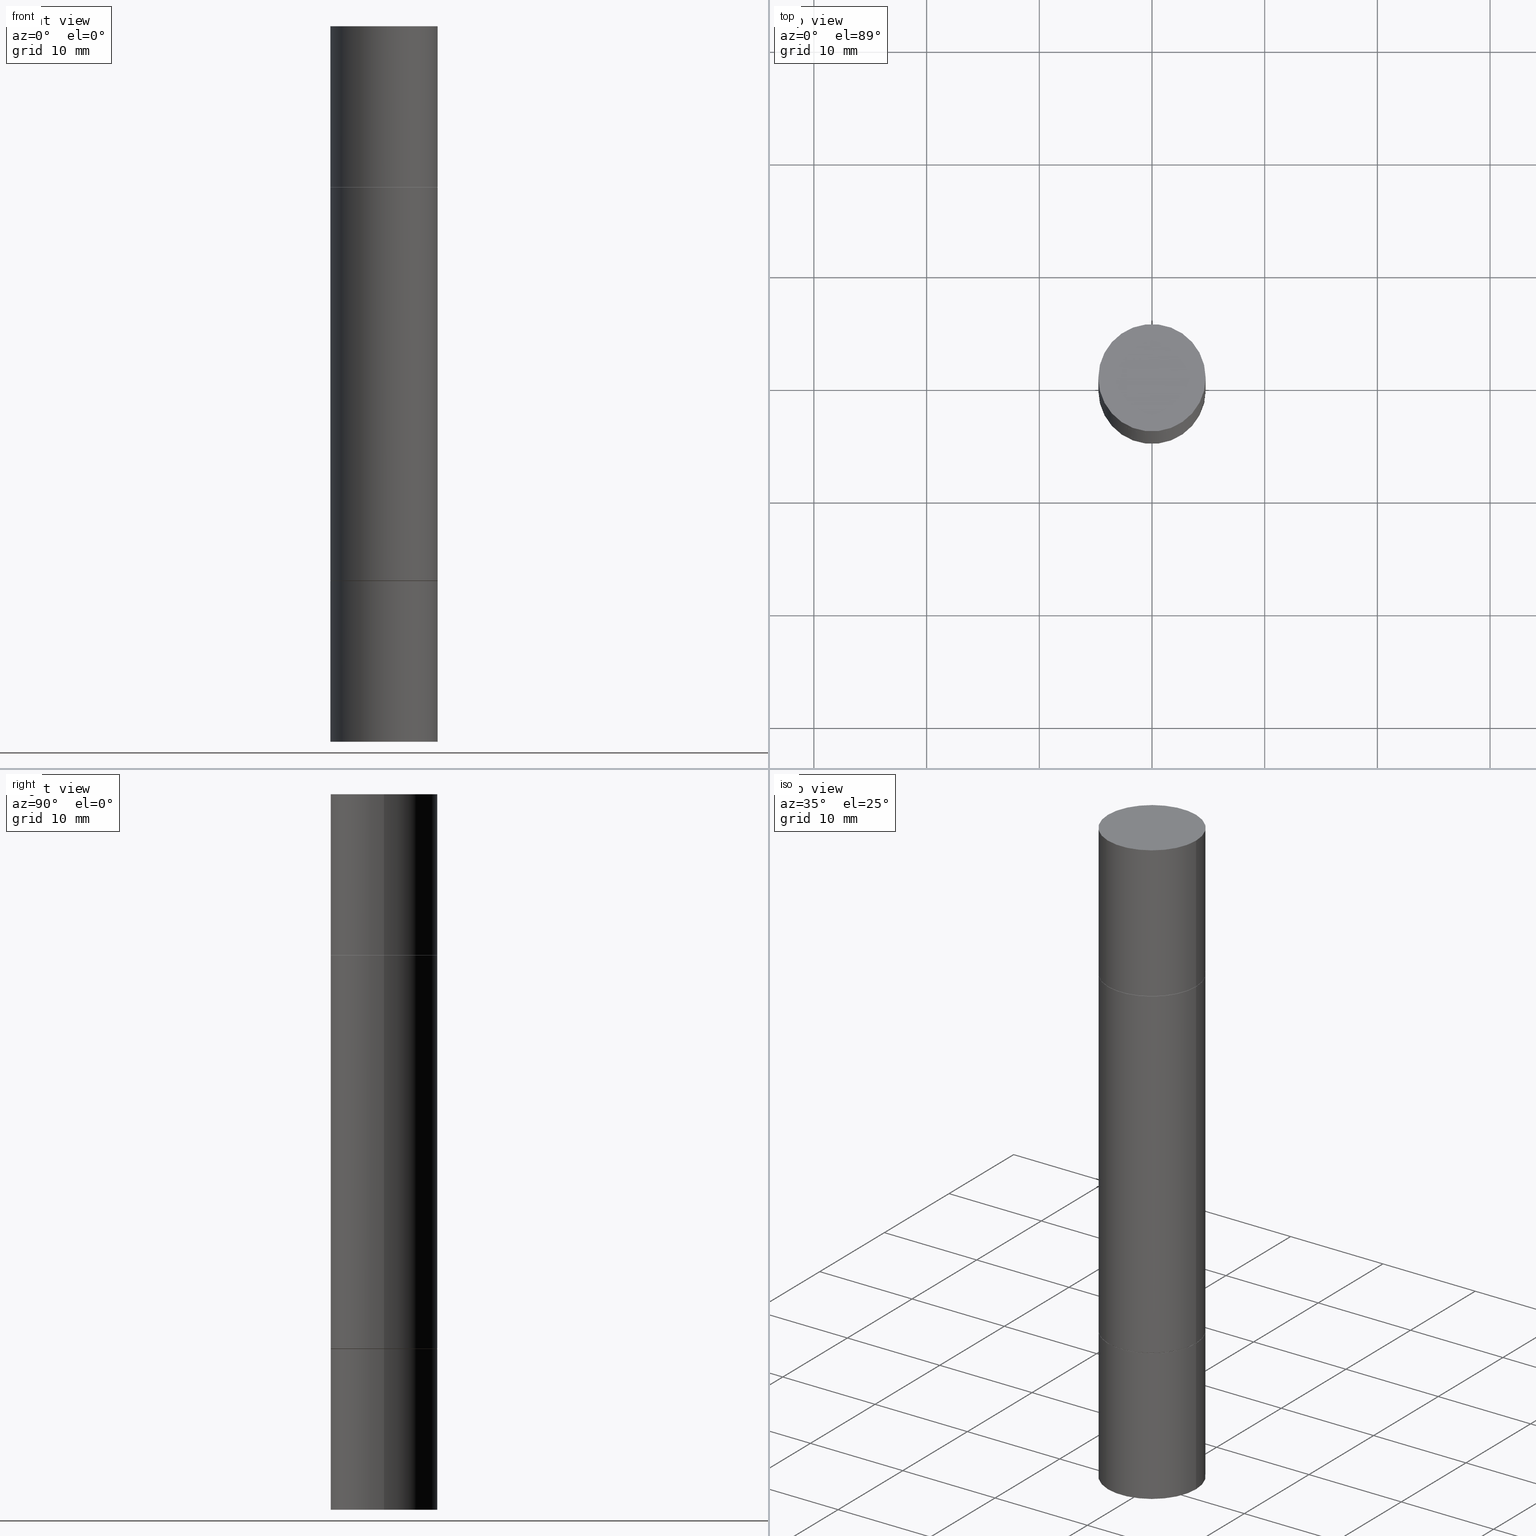
[diagram: canonical four-view strip — front | top / right | iso, engineering-drawing reading convention]
A machine part, canonical four-view strip (front | top / right | iso — engineering-drawing reading convention). The complete STEP part file that produces these views, byte-faithful:
ISO-10303-21;
HEADER;
FILE_DESCRIPTION (( 'STEP AP203' ),
    '1' );
FILE_NAME ('31435.STEP',
    '2024-03-04T15:41:54',
    ( '' ),
    ( '' ),
    'SwSTEP 2.0',
    'SolidWorks 2023',
    '' );
FILE_SCHEMA (( 'CONFIG_CONTROL_DESIGN' ));
ENDSEC;

DATA;
#1 = VECTOR ( 'NONE', #423, 39.37007874015748854 ) ;
#2 = PLANE ( 'NONE',  #73 ) ;
#3 = CARTESIAN_POINT ( 'NONE',  ( 0.000000000000000000, 0.000000000000000000, -1.249999999999999778 ) ) ;
#4 = EDGE_LOOP ( 'NONE', ( #437, #241, #175, #630 ) ) ;
#5 = EDGE_CURVE ( 'NONE', #176, #56, #166, .T. ) ;
#6 = VERTEX_POINT ( 'NONE', #224 ) ;
#7 = AXIS2_PLACEMENT_3D ( 'NONE', #132, #411, #672 ) ;
#8 = LOCAL_TIME ( 10, 41, 54.00000000000000000, #208 ) ;
#9 = CYLINDRICAL_SURFACE ( 'NONE', #276, 0.1875000000000000278 ) ;
#10 = ADVANCED_FACE ( 'NONE', ( #51 ), #268, .T. ) ;
#11 = ORIENTED_EDGE ( 'NONE', *, *, #548, .T. ) ;
#12 = CARTESIAN_POINT ( 'NONE',  ( 0.1864999999999999714, -3.263565609794813629E-15, -0.5619999999999996110 ) ) ;
#13 = DIRECTION ( 'NONE',  ( 1.000000000000000000, -6.982962677686266711E-15, 0.000000000000000000 ) ) ;
#14 = AXIS2_PLACEMENT_3D ( 'NONE', #129, #99, #81 ) ;
#15 = DIRECTION ( 'NONE',  ( -2.445468806185136597E-29, 3.491481338843145583E-15, 1.000000000000000000 ) ) ;
#16 = APPROVAL_PERSON_ORGANIZATION ( #576, #257, #54 ) ;
#17 = ORIENTED_EDGE ( 'NONE', *, *, #422, .T. ) ;
#18 = ORIENTED_EDGE ( 'NONE', *, *, #379, .T. ) ;
#19 = ORIENTED_EDGE ( 'NONE', *, *, #172, .F. ) ;
#20 = EDGE_CURVE ( 'NONE', #283, #179, #679, .T. ) ;
#21 = AXIS2_PLACEMENT_3D ( 'NONE', #363, #89, #145 ) ;
#22 = PLANE ( 'NONE',  #565 ) ;
#23 = VERTEX_POINT ( 'NONE', #632 ) ;
#24 = CARTESIAN_POINT ( 'NONE',  ( 0.1874999999999999167, -4.473849319252078646E-15, -1.249999999999999778 ) ) ;
#25 = DIRECTION ( 'NONE',  ( -2.445468806185136597E-29, -3.492890411551752677E-15, -1.000000000000000000 ) ) ;
#26 = DIRECTION ( 'NONE',  ( -0.000000000000000000, -3.492185875197449130E-15, -1.000000000000000000 ) ) ;
#27 = AXIS2_PLACEMENT_3D ( 'NONE', #397, #454, #173 ) ;
#28 = VERTEX_POINT ( 'NONE', #413 ) ;
#29 = FACE_OUTER_BOUND ( 'NONE', #553, .T. ) ;
#30 = PERSON_AND_ORGANIZATION ( #662, #326 ) ;
#31 = ADVANCED_FACE ( 'NONE', ( #622 ), #306, .F. ) ;
#32 = VECTOR ( 'NONE', #562, 39.37007874015748143 ) ;
#33 = CALENDAR_DATE ( 2024, 4, 3 ) ;
#34 = CARTESIAN_POINT ( 'NONE',  ( 4.739318546386794397E-29, -1.961243070406324635E-15, -0.5619999999999996110 ) ) ;
#35 = ADVANCED_BREP_SHAPE_REPRESENTATION ( '31435', ( #282, #255, #506, #280, #46, #639 ), #521 ) ;
#36 = COORDINATED_UNIVERSAL_TIME_OFFSET ( 5, 0, .BEHIND. ) ;
#37 = DIRECTION ( 'NONE',  ( -2.445468806185136597E-29, -3.492890411551752677E-15, -1.000000000000000000 ) ) ;
#38 = CARTESIAN_POINT ( 'NONE',  ( -0.1874999999999999167, -7.444121313411459473E-15, -2.499999999999999556 ) ) ;
#39 = AXIS2_PLACEMENT_3D ( 'NONE', #560, #284, #589 ) ;
#40 = CC_DESIGN_PERSON_AND_ORGANIZATION_ASSIGNMENT ( #271, #476, ( #532 ) ) ;
#41 = CONICAL_SURFACE ( 'NONE', #105, 0.1864999999999999714, 0.7853981633974311816 ) ;
#42 =( CONVERSION_BASED_UNIT ( 'INCH', #456 ) LENGTH_UNIT ( ) NAMED_UNIT ( #88 ) );
#43 = CARTESIAN_POINT ( 'NONE',  ( 4.739318546386794397E-29, -1.961243070406324635E-15, -0.5619999999999996110 ) ) ;
#44 = CARTESIAN_POINT ( 'NONE',  ( 0.000000000000000000, -8.730464687993621641E-15, -2.499999999999999556 ) ) ;
#45 = CYLINDRICAL_SURFACE ( 'NONE', #252, 0.1875000000000000278 ) ;
#46 = MANIFOLD_SOLID_BREP ( 'Combine1', #414 ) ;
#47 = CARTESIAN_POINT ( 'NONE',  ( 4.739318546386794397E-29, -6.766490834678016045E-15, -1.937999999999999945 ) ) ;
#48 = APPROVAL_STATUS ( 'not_yet_approved' ) ;
#49 = CYLINDRICAL_SURFACE ( 'NONE', #431, 0.1875000000000000278 ) ;
#50 = AXIS2_PLACEMENT_3D ( 'NONE', #213, #316, #101 ) ;
#51 = FACE_OUTER_BOUND ( 'NONE', #4, .T. ) ;
#52 = FACE_OUTER_BOUND ( 'NONE', #495, .T. ) ;
#53 = DIRECTION ( 'NONE',  ( 1.000000000000000000, -6.982962677686266711E-15, 0.000000000000000000 ) ) ;
#54 = APPROVAL_ROLE ( '' ) ;
#55 = ADVANCED_FACE ( 'NONE', ( #403 ), #49, .T. ) ;
#56 = VERTEX_POINT ( 'NONE', #366 ) ;
#57 = AXIS2_PLACEMENT_3D ( 'NONE', #631, #207, #93 ) ;
#58 = PERSON_AND_ORGANIZATION_ROLE ( 'classification_officer' ) ;
#59 = ORIENTED_EDGE ( 'NONE', *, *, #590, .F. ) ;
#60 = EDGE_CURVE ( 'NONE', #575, #544, #138, .T. ) ;
#61 = ADVANCED_FACE ( 'NONE', ( #360 ), #45, .T. ) ;
#62 = AXIS2_PLACEMENT_3D ( 'NONE', #285, #174, #493 ) ;
#63 = LOCAL_TIME ( 10, 41, 54.00000000000000000, #315 ) ;
#64 = CARTESIAN_POINT ( 'NONE',  ( -0.1864999999999999714, -5.436030178137207592E-15, -1.937999999999999945 ) ) ;
#65 = CARTESIAN_POINT ( 'NONE',  ( 0.000000000000000000, -8.730464687993621641E-15, -2.499999999999999556 ) ) ;
#66 = ORIENTED_EDGE ( 'NONE', *, *, #548, .F. ) ;
#67 = EDGE_LOOP ( 'NONE', ( #387, #157, #509, #409 ) ) ;
#68 = ORIENTED_EDGE ( 'NONE', *, *, #654, .T. ) ;
#69 = AXIS2_PLACEMENT_3D ( 'NONE', #189, #177, #598 ) ;
#70 = EDGE_CURVE ( 'NONE', #176, #77, #579, .T. ) ;
#71 = EDGE_LOOP ( 'NONE', ( #417, #649 ) ) ;
#72 = CARTESIAN_POINT ( 'NONE',  ( 0.1875000000000000278, -1.003977019005979665E-14, -2.499999999999999556 ) ) ;
#73 = AXIS2_PLACEMENT_3D ( 'NONE', #251, #245, #375 ) ;
#74 = DIRECTION ( 'NONE',  ( 2.438088387897959769E-29, 3.492890411551753071E-15, 1.000000000000000000 ) ) ;
#75 = APPROVAL_DATE_TIME ( #300, #143 ) ;
#76 = FACE_OUTER_BOUND ( 'NONE', #106, .T. ) ;
#77 = VERTEX_POINT ( 'NONE', #97 ) ;
#78 = CARTESIAN_POINT ( 'NONE',  ( 0.1864999999999999714, -8.068813374066505039E-15, -1.937999999999999945 ) ) ;
#79 = ADVANCED_FACE ( 'NONE', ( #671 ), #2, .T. ) ;
#80 = EDGE_CURVE ( 'NONE', #77, #523, #625, .T. ) ;
#81 = DIRECTION ( 'NONE',  ( 1.000000000000000000, -6.982962677686265922E-15, 4.876176775795935793E-29 ) ) ;
#82 = DIRECTION ( 'NONE',  ( 2.445468806185136597E-29, 3.492890411551752677E-15, 1.000000000000000000 ) ) ;
#83 = PERSON_AND_ORGANIZATION ( #662, #326 ) ;
#84 = LINE ( 'NONE', #676, #354 ) ;
#85 = FACE_OUTER_BOUND ( 'NONE', #540, .T. ) ;
#86 = DIRECTION ( 'NONE',  ( 2.445468806185136597E-29, 3.492890411551752677E-15, 1.000000000000000000 ) ) ;
#87 = DIRECTION ( 'NONE',  ( 0.7071067811865353603, -7.407546758114202791E-15, -0.7071067811865595631 ) ) ;
#88 = DIMENSIONAL_EXPONENTS ( 1.000000000000000000, 0.000000000000000000, 0.000000000000000000, 0.000000000000000000, 0.000000000000000000, 0.000000000000000000, 0.000000000000000000 ) ;
#89 = DIRECTION ( 'NONE',  ( -2.445468806185136597E-29, 3.491481338843145583E-15, 1.000000000000000000 ) ) ;
#90 =( NAMED_UNIT ( * ) SI_UNIT ( $, .STERADIAN. ) SOLID_ANGLE_UNIT ( ) );
#91 = CARTESIAN_POINT ( 'NONE',  ( 0.1874999999999999167, -1.003977019005979665E-14, -2.499999999999999556 ) ) ;
#92 = CC_DESIGN_PERSON_AND_ORGANIZATION_ASSIGNMENT ( #83, #675, ( #109 ) ) ;
#93 = DIRECTION ( 'NONE',  ( 1.000000000000000000, -6.982962677686266711E-15, 0.000000000000000000 ) ) ;
#94 = PERSON_AND_ORGANIZATION ( #662, #326 ) ;
#95 = CARTESIAN_POINT ( 'NONE',  ( 0.000000000000000000, -8.730464687993621641E-15, -2.499999999999999556 ) ) ;
#96 = FACE_OUTER_BOUND ( 'NONE', #289, .T. ) ;
#97 = CARTESIAN_POINT ( 'NONE',  ( -0.1875000000000000278, 3.066025098218802702E-16, 5.463695987328561936E-16 ) ) ;
#98 = ORIENTED_EDGE ( 'NONE', *, *, #328, .F. ) ;
#99 = DIRECTION ( 'NONE',  ( -2.445468806185136597E-29, 3.491481338843145583E-15, 1.000000000000000000 ) ) ;
#100 = EDGE_CURVE ( 'NONE', #483, #489, #564, .T. ) ;
#101 = DIRECTION ( 'NONE',  ( 1.000000000000000000, -6.982962677686269077E-15, 0.000000000000000000 ) ) ;
#102 = ORIENTED_EDGE ( 'NONE', *, *, #644, .T. ) ;
#103 = DIRECTION ( 'NONE',  ( 2.438088387897959769E-29, 3.492890411551753071E-15, 1.000000000000000000 ) ) ;
#104 = CONICAL_SURFACE ( 'NONE', #39, 0.1864999999999999714, 0.7853981633974311816 ) ;
#105 = AXIS2_PLACEMENT_3D ( 'NONE', #303, #25, #136 ) ;
#106 = EDGE_LOOP ( 'NONE', ( #558, #286, #190, #350 ) ) ;
#107 = CARTESIAN_POINT ( 'NONE',  ( 1.309305502066222340E-15, 0.1874999999999980294, -0.5620000000000004992 ) ) ;
#108 = ORIENTED_EDGE ( 'NONE', *, *, #153, .F. ) ;
#109 = PRODUCT_DEFINITION ( 'UNKNOWN', '', #532, #327 ) ;
#110 = ORIENTED_EDGE ( 'NONE', *, *, #128, .T. ) ;
#111 = VERTEX_POINT ( 'NONE', #199 ) ;
#112 = VECTOR ( 'NONE', #151, 39.37007874015748143 ) ;
#113 = CARTESIAN_POINT ( 'NONE',  ( -0.1874999999999999722, -3.078008298971767937E-15, -1.936999999999999833 ) ) ;
#114 = DIRECTION ( 'NONE',  ( 0.7071067811865353603, -2.468850131082130054E-15, 0.7071067811865595631 ) ) ;
#115 = ORIENTED_EDGE ( 'NONE', *, *, #537, .F. ) ;
#116 = LINE ( 'NONE', #168, #458 ) ;
#117 = ORIENTED_EDGE ( 'NONE', *, *, #281, .F. ) ;
#118 = VECTOR ( 'NONE', #114, 39.37007874015748854 ) ;
#119 = ADVANCED_FACE ( 'NONE', ( #309 ), #469, .T. ) ;
#120 = ORIENTED_EDGE ( 'NONE', *, *, #253, .F. ) ;
#121 = ORIENTED_EDGE ( 'NONE', *, *, #210, .T. ) ;
#122 = FACE_OUTER_BOUND ( 'NONE', #552, .T. ) ;
#123 = EDGE_CURVE ( 'NONE', #232, #373, #661, .T. ) ;
#124 = AXIS2_PLACEMENT_3D ( 'NONE', #507, #555, #615 ) ;
#125 = ORIENTED_EDGE ( 'NONE', *, *, #487, .T. ) ;
#126 = DIRECTION ( 'NONE',  ( 1.000000000000000000, -6.982962677686265922E-15, 0.000000000000000000 ) ) ;
#127 = APPROVAL_DATE_TIME ( #406, #500 ) ;
#128 = EDGE_CURVE ( 'NONE', #111, #377, #496, .T. ) ;
#129 = CARTESIAN_POINT ( 'NONE',  ( 0.000000000000000000, 0.000000000000000000, 0.000000000000000000 ) ) ;
#130 = APPROVAL_STATUS ( 'not_yet_approved' ) ;
#131 = DIRECTION ( 'NONE',  ( -2.445468806185136597E-29, -3.492890411551752677E-15, -1.000000000000000000 ) ) ;
#132 = CARTESIAN_POINT ( 'NONE',  ( 0.000000000000000000, -8.730464687993621641E-15, -2.499999999999999556 ) ) ;
#133 = APPLICATION_PROTOCOL_DEFINITION ( 'international standard', 'config_control_design', 1994, #573 ) ;
#134 = AXIS2_PLACEMENT_3D ( 'NONE', #301, #15, #596 ) ;
#135 = DIRECTION ( 'NONE',  ( -2.445468806185136877E-29, -3.492890411551753071E-15, -1.000000000000000000 ) ) ;
#136 = DIRECTION ( 'NONE',  ( 1.000000000000000000, -6.982962677686269077E-15, 0.000000000000000000 ) ) ;
#137 = DIRECTION ( 'NONE',  ( -1.000000000000000000, 6.982962677686265922E-15, -4.876176775795935793E-29 ) ) ;
#138 = CIRCLE ( 'NONE', #329, 0.1875000000000000278 ) ;
#139 = CIRCLE ( 'NONE', #607, 0.1874999999999999167 ) ;
#140 =( LENGTH_UNIT ( ) NAMED_UNIT ( * ) SI_UNIT ( $, .METRE. ) );
#141 = CARTESIAN_POINT ( 'NONE',  ( 4.739318546386794397E-29, -6.766490834678016045E-15, -1.937999999999999945 ) ) ;
#142 = DIRECTION ( 'NONE',  ( 1.000000000000000000, -6.982962677686265922E-15, 0.000000000000000000 ) ) ;
#143 = APPROVAL ( #664, 'UNSPECIFIED' ) ;
#144 = DIRECTION ( 'NONE',  ( 1.000000000000000000, -6.982962677686266711E-15, 0.000000000000000000 ) ) ;
#145 = DIRECTION ( 'NONE',  ( 1.000000000000000000, -6.982962677686269077E-15, 0.000000000000000000 ) ) ;
#146 = DIRECTION ( 'NONE',  ( 1.000000000000000000, -6.982962677686266711E-15, 0.000000000000000000 ) ) ;
#147 = ORIENTED_EDGE ( 'NONE', *, *, #80, .F. ) ;
#148 = AXIS2_PLACEMENT_3D ( 'NONE', #370, #390, #290 ) ;
#149 = VECTOR ( 'NONE', #551, 39.37007874015748143 ) ;
#150 = DIRECTION ( 'NONE',  ( 2.445468806185136597E-29, 3.492890411551752677E-15, 1.000000000000000000 ) ) ;
#151 = DIRECTION ( 'NONE',  ( -2.445468806185136877E-29, 3.491481338843145188E-15, 1.000000000000000000 ) ) ;
#152 = ORIENTED_EDGE ( 'NONE', *, *, #337, .T. ) ;
#153 = EDGE_CURVE ( 'NONE', #77, #176, #332, .T. ) ;
#154 = ADVANCED_FACE ( 'NONE', ( #473 ), #323, .T. ) ;
#155 = DATE_AND_TIME ( #634, #8 ) ;
#156 = DIRECTION ( 'NONE',  ( 1.000000000000000000, -6.982962677686265922E-15, 4.876176775795935793E-29 ) ) ;
#157 = ORIENTED_EDGE ( 'NONE', *, *, #475, .F. ) ;
#158 = UNCERTAINTY_MEASURE_WITH_UNIT (LENGTH_MEASURE( 1.000000000000000082E-05 ), #42, 'distance_accuracy_value', 'NONE');
#159 = DIRECTION ( 'NONE',  ( -2.445468806185136597E-29, 3.491481338843145583E-15, 1.000000000000000000 ) ) ;
#160 = ORIENTED_EDGE ( 'NONE', *, *, #70, .F. ) ;
#161 = EDGE_CURVE ( 'NONE', #283, #28, #165, .T. ) ;
#162 = DIRECTION ( 'NONE',  ( 1.000000000000000000, -6.982962677686265922E-15, 4.876176775795935793E-29 ) ) ;
#163 = CIRCLE ( 'NONE', #27, 0.1875000000000000278 ) ;
#164 = ORIENTED_EDGE ( 'NONE', *, *, #328, .T. ) ;
#165 = LINE ( 'NONE', #225, #118 ) ;
#166 = LINE ( 'NONE', #334, #433 ) ;
#167 = ADVANCED_FACE ( 'NONE', ( #514 ), #464, .T. ) ;
#168 = CARTESIAN_POINT ( 'NONE',  ( -0.1874999999999999167, -7.444121313411459473E-15, -2.499999999999999556 ) ) ;
#169 = VECTOR ( 'NONE', #369, 39.37007874015748854 ) ;
#170 = ORIENTED_EDGE ( 'NONE', *, *, #422, .F. ) ;
#171 = ORIENTED_EDGE ( 'NONE', *, *, #487, .F. ) ;
#172 = EDGE_CURVE ( 'NONE', #523, #56, #595, .T. ) ;
#173 = DIRECTION ( 'NONE',  ( 1.000000000000000000, -6.982962677686266711E-15, 0.000000000000000000 ) ) ;
#174 = DIRECTION ( 'NONE',  ( 2.438088387897959769E-29, 3.492890411551753071E-15, 1.000000000000000000 ) ) ;
#175 = ORIENTED_EDGE ( 'NONE', *, *, #666, .T. ) ;
#176 = VERTEX_POINT ( 'NONE', #270 ) ;
#177 = DIRECTION ( 'NONE',  ( -2.438088387897959769E-29, -3.492890411551753071E-15, -1.000000000000000000 ) ) ;
#178 = FACE_OUTER_BOUND ( 'NONE', #641, .T. ) ;
#179 = VERTEX_POINT ( 'NONE', #64 ) ;
#180 = ORIENTED_EDGE ( 'NONE', *, *, #304, .T. ) ;
#181 = CARTESIAN_POINT ( 'NONE',  ( 0.1875000000000000278, -1.003800884917403995E-14, -2.500000000000000000 ) ) ;
#182 = CIRCLE ( 'NONE', #481, 0.1875000000000000278 ) ;
#183 = CC_DESIGN_APPROVAL ( #257, ( #628 ) ) ;
#184 = ADVANCED_FACE ( 'NONE', ( #424 ), #677, .T. ) ;
#185 = PLANE ( 'NONE',  #62 ) ;
#186 = EDGE_LOOP ( 'NONE', ( #652, #609 ) ) ;
#187 = PRODUCT_DEFINITION_SHAPE ( 'NONE', 'NONE',  #109 ) ;
#188 = ORIENTED_EDGE ( 'NONE', *, *, #614, .F. ) ;
#189 = CARTESIAN_POINT ( 'NONE',  ( 4.739318546386794397E-29, -1.961243070406324635E-15, -0.5619999999999996110 ) ) ;
#190 = ORIENTED_EDGE ( 'NONE', *, *, #281, .T. ) ;
#191 =( NAMED_UNIT ( * ) PLANE_ANGLE_UNIT ( ) SI_UNIT ( $, .RADIAN. ) );
#192 = ORIENTED_EDGE ( 'NONE', *, *, #100, .T. ) ;
#193 = FACE_OUTER_BOUND ( 'NONE', #665, .T. ) ;
#194 = DATE_TIME_ROLE ( 'creation_date' ) ;
#195 = VECTOR ( 'NONE', #457, 39.37007874015748854 ) ;
#196 = EDGE_CURVE ( 'NONE', #339, #483, #525, .T. ) ;
#197 = CARTESIAN_POINT ( 'NONE',  ( 1.309305502066236145E-15, 0.1874999999999912847, -2.500000000000000444 ) ) ;
#198 = CALENDAR_DATE ( 2024, 4, 3 ) ;
#199 = CARTESIAN_POINT ( 'NONE',  ( -0.1864999999999999714, -6.800763900288241472E-16, -0.5619999999999996110 ) ) ;
#200 = EDGE_LOOP ( 'NONE', ( #485, #110 ) ) ;
#201 = FACE_OUTER_BOUND ( 'NONE', #278, .T. ) ;
#202 = DIRECTION ( 'NONE',  ( 1.000000000000000000, -6.982962677686266711E-15, 0.000000000000000000 ) ) ;
#203 = CARTESIAN_POINT ( 'NONE',  ( 4.739318546386794397E-29, -6.766490834678016045E-15, -1.937999999999999945 ) ) ;
#204 = CARTESIAN_POINT ( 'NONE',  ( 4.739318546386794397E-29, -1.961243070406324635E-15, -0.5619999999999996110 ) ) ;
#205 = DIRECTION ( 'NONE',  ( -0.7071067811865353603, 2.381258160591140710E-15, -0.7071067811865595631 ) ) ;
#206 = CLOSED_SHELL ( 'NONE', ( #167, #516, #643, #600 ) ) ;
#207 = DIRECTION ( 'NONE',  ( 2.445468806185136597E-29, 3.492890411551752677E-15, 1.000000000000000000 ) ) ;
#208 = COORDINATED_UNIVERSAL_TIME_OFFSET ( 5, 0, .BEHIND. ) ;
#209 = CARTESIAN_POINT ( 'NONE',  ( -0.1875000000000000278, -7.444121313411457895E-15, -2.499999999999999556 ) ) ;
#210 = EDGE_CURVE ( 'NONE', #536, #489, #139, .T. ) ;
#211 = EDGE_LOOP ( 'NONE', ( #547, #324, #535, #170 ) ) ;
#212 = AXIS2_PLACEMENT_3D ( 'NONE', #141, #611, #365 ) ;
#213 = CARTESIAN_POINT ( 'NONE',  ( 4.739318546386794397E-29, -6.766490834678016045E-15, -1.937999999999999945 ) ) ;
#214 = CARTESIAN_POINT ( 'NONE',  ( -0.1875000000000000278, -6.415329461342752645E-15, -2.500000000000000000 ) ) ;
#215 = DATE_TIME_ROLE ( 'classification_date' ) ;
#216 = DIRECTION ( 'NONE',  ( 1.000000000000000000, -6.982962677686270655E-15, 0.000000000000000000 ) ) ;
#217 = CARTESIAN_POINT ( 'NONE',  ( 0.1864999999999999714, -3.263565609794813629E-15, -0.5619999999999996110 ) ) ;
#218 = CARTESIAN_POINT ( 'NONE',  ( 0.000000000000000000, 0.000000000000000000, 0.000000000000000000 ) ) ;
#219 = AXIS2_PLACEMENT_3D ( 'NONE', #673, #405, #362 ) ;
#220 = CIRCLE ( 'NONE', #531, 0.1875000000000000278 ) ;
#221 = CC_DESIGN_PERSON_AND_ORGANIZATION_ASSIGNMENT ( #446, #567, ( #532 ) ) ;
#222 = CARTESIAN_POINT ( 'NONE',  ( -0.1875000000000000278, -6.783925862357143136E-16, -0.5629999999999997229 ) ) ;
#223 = EDGE_LOOP ( 'NONE', ( #482, #442, #235, #349 ) ) ;
#224 = CARTESIAN_POINT ( 'NONE',  ( 0.1875000000000000278, -1.307544161180414563E-15, 5.463695987328526437E-16 ) ) ;
#225 = CARTESIAN_POINT ( 'NONE',  ( 0.1864999999999999714, -8.068813374066505039E-15, -1.937999999999999945 ) ) ;
#226 = EDGE_CURVE ( 'NONE', #179, #283, #550, .T. ) ;
#227 = ORIENTED_EDGE ( 'NONE', *, *, #70, .T. ) ;
#228 = CIRCLE ( 'NONE', #490, 0.1875000000000000278 ) ;
#229 = VERTEX_POINT ( 'NONE', #308 ) ;
#230 = ORIENTED_EDGE ( 'NONE', *, *, #153, .T. ) ;
#231 = EDGE_LOOP ( 'NONE', ( #115, #98, #192, #396 ) ) ;
#232 = VERTEX_POINT ( 'NONE', #314 ) ;
#233 = DIRECTION ( 'NONE',  ( -1.000000000000000000, 6.982962677686265922E-15, -9.839502134516470631E-33 ) ) ;
#234 = EDGE_CURVE ( 'NONE', #232, #28, #543, .T. ) ;
#235 = ORIENTED_EDGE ( 'NONE', *, *, #383, .F. ) ;
#236 = ORIENTED_EDGE ( 'NONE', *, *, #448, .F. ) ;
#237 = CARTESIAN_POINT ( 'NONE',  ( 4.736873077580609355E-29, -1.964735960817877172E-15, -0.5629999999999997229 ) ) ;
#238 = PLANE ( 'NONE',  #69 ) ;
#239 = DIRECTION ( 'NONE',  ( -2.445468806185136877E-29, -3.492890411551753071E-15, -1.000000000000000000 ) ) ;
#240 = COORDINATED_UNIVERSAL_TIME_OFFSET ( 5, 0, .BEHIND. ) ;
#241 = ORIENTED_EDGE ( 'NONE', *, *, #526, .T. ) ;
#242 = ORIENTED_EDGE ( 'NONE', *, *, #379, .F. ) ;
#243 = PERSON_AND_ORGANIZATION_ROLE ( 'design_owner' ) ;
#244 = CARTESIAN_POINT ( 'NONE',  ( 4.739318546386794397E-29, -6.766490834678016045E-15, -1.937999999999999945 ) ) ;
#245 = DIRECTION ( 'NONE',  ( 2.438088387897959769E-29, 3.492890411551753071E-15, 1.000000000000000000 ) ) ;
#246 = EDGE_CURVE ( 'NONE', #377, #111, #642, .T. ) ;
#247 = LINE ( 'NONE', #556, #149 ) ;
#248 = DIRECTION ( 'NONE',  ( -2.445468806185136877E-29, -3.492890411551753071E-15, -1.000000000000000000 ) ) ;
#249 = AXIS2_PLACEMENT_3D ( 'NONE', #34, #355, #466 ) ;
#250 = CARTESIAN_POINT ( 'NONE',  ( 0.000000000000000000, 0.000000000000000000, 0.000000000000000000 ) ) ;
#251 = CARTESIAN_POINT ( 'NONE',  ( 1.309305502066236145E-15, 0.1874999999999999722, 0.000000000000000000 ) ) ;
#252 = AXIS2_PLACEMENT_3D ( 'NONE', #527, #520, #530 ) ;
#253 = EDGE_CURVE ( 'NONE', #6, #575, #302, .T. ) ;
#254 = VECTOR ( 'NONE', #293, 39.37007874015748143 ) ;
#255 = MANIFOLD_SOLID_BREP ( 'Mirror1[1]', #259 ) ;
#256 = AXIS2_PLACEMENT_3D ( 'NONE', #44, #462, #202 ) ;
#257 = APPROVAL ( #48, 'UNSPECIFIED' ) ;
#258 = DIRECTION ( 'NONE',  ( 2.438088387897960049E-29, -3.491481338843145188E-15, -1.000000000000000000 ) ) ;
#259 = CLOSED_SHELL ( 'NONE', ( #313, #563, #398, #501, #619, #296 ) ) ;
#260 = APPROVAL_DATE_TIME ( #155, #257 ) ;
#261 = AXIS2_PLACEMENT_3D ( 'NONE', #505, #499, #343 ) ;
#262 = DIRECTION ( 'NONE',  ( -2.438088387897960049E-29, 3.491481338843145188E-15, 1.000000000000000000 ) ) ;
#263 = DIRECTION ( 'NONE',  ( 1.000000000000000000, -6.982962677686265922E-15, 0.000000000000000000 ) ) ;
#264 = PRODUCT_RELATED_PRODUCT_CATEGORY ( 'detail', '', ( #447 ) ) ;
#265 = ORIENTED_EDGE ( 'NONE', *, *, #161, .T. ) ;
#266 = AXIS2_PLACEMENT_3D ( 'NONE', #3, #319, #378 ) ;
#267 = AXIS2_PLACEMENT_3D ( 'NONE', #244, #364, #561 ) ;
#268 = CYLINDRICAL_SURFACE ( 'NONE', #352, 0.1875000000000000278 ) ;
#269 = PLANE ( 'NONE',  #124 ) ;
#270 = CARTESIAN_POINT ( 'NONE',  ( 0.1875000000000000278, -1.307544161180414563E-15, 5.463695987328526437E-16 ) ) ;
#271 = PERSON_AND_ORGANIZATION ( #662, #326 ) ;
#272 = CARTESIAN_POINT ( 'NONE',  ( 4.739318546386794397E-29, -6.766490834678016045E-15, -1.937999999999999945 ) ) ;
#273 = ORIENTED_EDGE ( 'NONE', *, *, #100, .F. ) ;
#274 = CC_DESIGN_PERSON_AND_ORGANIZATION_ASSIGNMENT ( #30, #243, ( #447 ) ) ;
#275 = ORIENTED_EDGE ( 'NONE', *, *, #80, .T. ) ;
#276 = AXIS2_PLACEMENT_3D ( 'NONE', #65, #277, #512 ) ;
#277 = DIRECTION ( 'NONE',  ( -2.445468806185136597E-29, -3.492890411551752677E-15, -1.000000000000000000 ) ) ;
#278 = EDGE_LOOP ( 'NONE', ( #660, #18, #236, #331 ) ) ;
#279 = ORIENTED_EDGE ( 'NONE', *, *, #448, .T. ) ;
#280 = MANIFOLD_SOLID_BREP ( 'Mirror1[4]', #206 ) ;
#281 = EDGE_CURVE ( 'NONE', #592, #28, #163, .T. ) ;
#282 = MANIFOLD_SOLID_BREP ( 'Body-Move/Copy2[1]', #645 ) ;
#283 = VERTEX_POINT ( 'NONE', #78 ) ;
#284 = DIRECTION ( 'NONE',  ( -2.445468806185136597E-29, -3.492890411551752677E-15, -1.000000000000000000 ) ) ;
#285 = CARTESIAN_POINT ( 'NONE',  ( 1.309305502066236145E-15, 0.1874999999999999722, 0.000000000000000000 ) ) ;
#286 = ORIENTED_EDGE ( 'NONE', *, *, #570, .T. ) ;
#287 = VECTOR ( 'NONE', #135, 39.37007874015748143 ) ;
#288 = CIRCLE ( 'NONE', #267, 0.1875000000000000278 ) ;
#289 = EDGE_LOOP ( 'NONE', ( #242, #502, #265, #117 ) ) ;
#290 = DIRECTION ( 'NONE',  ( 1.000000000000000000, -6.982962677686266711E-15, 0.000000000000000000 ) ) ;
#291 = AXIS2_PLACEMENT_3D ( 'NONE', #471, #617, #142 ) ;
#292 = DIRECTION ( 'NONE',  ( 1.000000000000000000, -6.982962677686269077E-15, 0.000000000000000000 ) ) ;
#293 = DIRECTION ( 'NONE',  ( -2.445468806185136877E-29, -3.492890411551753071E-15, -1.000000000000000000 ) ) ;
#294 = AXIS2_PLACEMENT_3D ( 'NONE', #534, #382, #216 ) ;
#295 = CARTESIAN_POINT ( 'NONE',  ( 3.056836007731420185E-29, -4.364351673553931682E-15, -1.249999999999999778 ) ) ;
#296 = ADVANCED_FACE ( 'NONE', ( #298 ), #594, .T. ) ;
#297 = ORIENTED_EDGE ( 'NONE', *, *, #5, .T. ) ;
#298 = FACE_OUTER_BOUND ( 'NONE', #231, .T. ) ;
#299 = AXIS2_PLACEMENT_3D ( 'NONE', #461, #624, #144 ) ;
#300 = DATE_AND_TIME ( #347, #491 ) ;
#301 = CARTESIAN_POINT ( 'NONE',  ( 6.113672015462842613E-29, -8.728703347107864943E-15, -2.500000000000000000 ) ) ;
#302 = LINE ( 'NONE', #72, #545 ) ;
#303 = CARTESIAN_POINT ( 'NONE',  ( 4.739318546386794397E-29, -1.961243070406324635E-15, -0.5619999999999996110 ) ) ;
#304 = EDGE_CURVE ( 'NONE', #373, #232, #220, .T. ) ;
#305 = APPLICATION_PROTOCOL_DEFINITION ( 'international standard', 'config_control_design', 1994, #584 ) ;
#306 = PLANE ( 'NONE',  #529 ) ;
#307 = FACE_OUTER_BOUND ( 'NONE', #376, .T. ) ;
#308 = CARTESIAN_POINT ( 'NONE',  ( 0.1875000000000000278, -8.075796336744191053E-15, -1.937999999999999945 ) ) ;
#309 = FACE_OUTER_BOUND ( 'NONE', #330, .T. ) ;
#310 = CONICAL_SURFACE ( 'NONE', #392, 0.1864999999999999714, 0.7853981633974311816 ) ;
#311 = CC_DESIGN_APPROVAL ( #500, ( #532 ) ) ;
#312 = CC_DESIGN_APPROVAL ( #143, ( #109 ) ) ;
#313 = ADVANCED_FACE ( 'NONE', ( #29 ), #610, .T. ) ;
#314 = CARTESIAN_POINT ( 'NONE',  ( 0.1875000000000000278, -3.274041462884052574E-15, -0.5629999999999997229 ) ) ;
#315 = COORDINATED_UNIVERSAL_TIME_OFFSET ( 5, 0, .BEHIND. ) ;
#316 = DIRECTION ( 'NONE',  ( -2.445468806185136597E-29, 3.491481338843145583E-15, 1.000000000000000000 ) ) ;
#317 = EDGE_LOOP ( 'NONE', ( #657, #121 ) ) ;
#318 = DIRECTION ( 'NONE',  ( -1.000000000000000000, 6.982962677686265922E-15, -9.839502134516470631E-33 ) ) ;
#319 = DIRECTION ( 'NONE',  ( 0.000000000000000000, 3.492185875197449524E-15, 1.000000000000000000 ) ) ;
#320 = DIRECTION ( 'NONE',  ( 2.438088387897960049E-29, -3.491481338843145188E-15, -1.000000000000000000 ) ) ;
#321 = DATE_AND_TIME ( #637, #63 ) ;
#322 = DIRECTION ( 'NONE',  ( 2.445468806185136597E-29, 3.492890411551752677E-15, 1.000000000000000000 ) ) ;
#323 = CYLINDRICAL_SURFACE ( 'NONE', #294, 0.1874999999999999167 ) ;
#324 = ORIENTED_EDGE ( 'NONE', *, *, #636, .T. ) ;
#325 = AXIS2_PLACEMENT_3D ( 'NONE', #640, #580, #480 ) ;
#326 = ORGANIZATION ( 'UNSPECIFIED', 'UNSPECIFIED', '' ) ;
#327 = DESIGN_CONTEXT ( 'detailed design', #584, 'design' ) ;
#328 = EDGE_CURVE ( 'NONE', #483, #339, #587, .T. ) ;
#329 = AXIS2_PLACEMENT_3D ( 'NONE', #522, #515, #460 ) ;
#330 = EDGE_LOOP ( 'NONE', ( #486, #11, #180, #188 ) ) ;
#331 = ORIENTED_EDGE ( 'NONE', *, *, #161, .F. ) ;
#332 = CIRCLE ( 'NONE', #524, 0.1875000000000000278 ) ;
#333 = EDGE_LOOP ( 'NONE', ( #108, #275, #488, #441 ) ) ;
#334 = CARTESIAN_POINT ( 'NONE',  ( 0.1875000000000000278, -1.003977019005979665E-14, -2.499999999999999556 ) ) ;
#335 = AXIS2_PLACEMENT_3D ( 'NONE', #568, #408, #623 ) ;
#336 = ADVANCED_FACE ( 'NONE', ( #201 ), #577, .T. ) ;
#337 = EDGE_CURVE ( 'NONE', #23, #578, #416, .T. ) ;
#338 = DIRECTION ( 'NONE',  ( -2.445468806185136877E-29, -3.492890411551753071E-15, -1.000000000000000000 ) ) ;
#339 = VERTEX_POINT ( 'NONE', #374 ) ;
#340 = ORIENTED_EDGE ( 'NONE', *, *, #353, .F. ) ;
#341 = VERTEX_POINT ( 'NONE', #181 ) ;
#342 = ORIENTED_EDGE ( 'NONE', *, *, #636, .F. ) ;
#343 = DIRECTION ( 'NONE',  ( 1.000000000000000000, -6.982962677686269077E-15, 0.000000000000000000 ) ) ;
#344 = VECTOR ( 'NONE', #248, 39.37007874015748143 ) ;
#345 = CIRCLE ( 'NONE', #428, 0.1864999999999999714 ) ;
#346 = ADVANCED_FACE ( 'NONE', ( #178 ), #646, .F. ) ;
#347 = CALENDAR_DATE ( 2024, 4, 3 ) ;
#348 = AXIS2_PLACEMENT_3D ( 'NONE', #43, #467, #678 ) ;
#349 = ORIENTED_EDGE ( 'NONE', *, *, #666, .F. ) ;
#350 = ORIENTED_EDGE ( 'NONE', *, *, #234, .F. ) ;
#351 = LINE ( 'NONE', #510, #1 ) ;
#352 = AXIS2_PLACEMENT_3D ( 'NONE', #218, #425, #162 ) ;
#353 = EDGE_CURVE ( 'NONE', #593, #6, #669, .T. ) ;
#354 = VECTOR ( 'NONE', #205, 39.37007874015748854 ) ;
#355 = DIRECTION ( 'NONE',  ( 2.445468806185136597E-29, 3.492890411551752677E-15, 1.000000000000000000 ) ) ;
#356 = LOCAL_TIME ( 10, 41, 54.00000000000000000, #395 ) ;
#357 = LINE ( 'NONE', #38, #344 ) ;
#358 = CARTESIAN_POINT ( 'NONE',  ( -0.1864999999999999714, -6.817601938219341781E-16, -0.5619999999999996110 ) ) ;
#359 = PERSON_AND_ORGANIZATION ( #662, #326 ) ;
#360 = FACE_OUTER_BOUND ( 'NONE', #67, .T. ) ;
#361 = CARTESIAN_POINT ( 'NONE',  ( 0.1864999999999999714, -3.263565609794813629E-15, -0.5619999999999996110 ) ) ;
#362 = DIRECTION ( 'NONE',  ( 1.000000000000000000, -6.982962677686270655E-15, 0.000000000000000000 ) ) ;
#363 = CARTESIAN_POINT ( 'NONE',  ( 4.739318546386794397E-29, -6.766490834678016045E-15, -1.937999999999999945 ) ) ;
#364 = DIRECTION ( 'NONE',  ( -2.445468806185136597E-29, 3.491481338843145583E-15, 1.000000000000000000 ) ) ;
#365 = DIRECTION ( 'NONE',  ( 1.000000000000000000, -6.982962677686269077E-15, 0.000000000000000000 ) ) ;
#366 = CARTESIAN_POINT ( 'NONE',  ( 0.1875000000000000278, -3.270548572472500038E-15, -0.5619999999999996110 ) ) ;
#367 = CC_DESIGN_PERSON_AND_ORGANIZATION_ASSIGNMENT ( #94, #58, ( #628 ) ) ;
#368 = CIRCLE ( 'NONE', #335, 0.1875000000000000278 ) ;
#369 = DIRECTION ( 'NONE',  ( -0.7071067811865353603, 7.493145998870309984E-15, 0.7071067811865595631 ) ) ;
#370 = CARTESIAN_POINT ( 'NONE',  ( 4.736873077580609355E-29, -6.762999353339172249E-15, -1.936999999999999833 ) ) ;
#371 = SHAPE_DEFINITION_REPRESENTATION ( #187, #35 ) ;
#372 = DIRECTION ( 'NONE',  ( 1.000000000000000000, -6.982962677686269077E-15, 0.000000000000000000 ) ) ;
#373 = VERTEX_POINT ( 'NONE', #222 ) ;
#374 = CARTESIAN_POINT ( 'NONE',  ( -0.1875000000000000278, -6.783925862357143136E-16, -0.5629999999999997229 ) ) ;
#375 = DIRECTION ( 'NONE',  ( -1.000000000000000000, 6.982962677686265922E-15, -9.839502134516470631E-33 ) ) ;
#376 = EDGE_LOOP ( 'NONE', ( #342, #650, #17, #164 ) ) ;
#377 = VERTEX_POINT ( 'NONE', #217 ) ;
#378 = DIRECTION ( 'NONE',  ( 0.000000000000000000, 1.000000000000000000, -3.492185875197449524E-15 ) ) ;
#379 = EDGE_CURVE ( 'NONE', #179, #592, #420, .T. ) ;
#380 = SECURITY_CLASSIFICATION_LEVEL ( 'unclassified' ) ;
#381 = CIRCLE ( 'NONE', #427, 0.1875000000000000278 ) ;
#382 = DIRECTION ( 'NONE',  ( -2.445468806185136597E-29, -3.492890411551752677E-15, -1.000000000000000000 ) ) ;
#383 = EDGE_CURVE ( 'NONE', #229, #435, #381, .T. ) ;
#384 = ORIENTED_EDGE ( 'NONE', *, *, #60, .F. ) ;
#385 = CC_DESIGN_DATE_AND_TIME_ASSIGNMENT ( #321, #215, ( #628 ) ) ;
#386 = CIRCLE ( 'NONE', #134, 0.1875000000000000278 ) ;
#387 = ORIENTED_EDGE ( 'NONE', *, *, #439, .F. ) ;
#388 = VERTEX_POINT ( 'NONE', #214 ) ;
#389 = ORIENTED_EDGE ( 'NONE', *, *, #196, .F. ) ;
#390 = DIRECTION ( 'NONE',  ( -2.445468806185136597E-29, 3.491481338843145583E-15, 1.000000000000000000 ) ) ;
#391 = ADVANCED_FACE ( 'NONE', ( #96 ), #310, .T. ) ;
#392 = AXIS2_PLACEMENT_3D ( 'NONE', #47, #472, #633 ) ;
#393 = CARTESIAN_POINT ( 'NONE',  ( 6.113672015462842613E-29, 1.761340885760521790E-18, 5.463695987328526437E-16 ) ) ;
#394 = EDGE_CURVE ( 'NONE', #388, #435, #680, .T. ) ;
#395 = COORDINATED_UNIVERSAL_TIME_OFFSET ( 5, 0, .BEHIND. ) ;
#396 = ORIENTED_EDGE ( 'NONE', *, *, #210, .F. ) ;
#397 = CARTESIAN_POINT ( 'NONE',  ( 4.736873077580609355E-29, -6.762999353339172249E-15, -1.936999999999999833 ) ) ;
#398 = ADVANCED_FACE ( 'NONE', ( #477 ), #418, .F. ) ;
#399 = DIRECTION ( 'NONE',  ( 1.000000000000000000, 0.000000000000000000, 0.000000000000000000 ) ) ;
#400 = CARTESIAN_POINT ( 'NONE',  ( -0.1875000000000000278, -6.415329461342752645E-15, -1.937999999999999945 ) ) ;
#401 = AXIS2_PLACEMENT_3D ( 'NONE', #295, #26, #586 ) ;
#402 = PERSON_AND_ORGANIZATION ( #662, #326 ) ;
#403 = FACE_OUTER_BOUND ( 'NONE', #533, .T. ) ;
#404 = CC_DESIGN_SECURITY_CLASSIFICATION ( #628, ( #532 ) ) ;
#405 = DIRECTION ( 'NONE',  ( -2.445468806185136597E-29, -3.492890411551752677E-15, -1.000000000000000000 ) ) ;
#406 = DATE_AND_TIME ( #198, #356 ) ;
#407 = DIRECTION ( 'NONE',  ( 1.000000000000000000, -6.982962677686266711E-15, 0.000000000000000000 ) ) ;
#408 = DIRECTION ( 'NONE',  ( -2.445468806185136597E-29, 3.491481338843145583E-15, 1.000000000000000000 ) ) ;
#409 = ORIENTED_EDGE ( 'NONE', *, *, #60, .T. ) ;
#410 = CARTESIAN_POINT ( 'NONE',  ( 4.739318546386794397E-29, -1.961243070406324635E-15, -0.5619999999999996110 ) ) ;
#411 = DIRECTION ( 'NONE',  ( -2.445468806185136597E-29, -3.492890411551752677E-15, -1.000000000000000000 ) ) ;
#412 = DIRECTION ( 'NONE',  ( 2.445468806185136597E-29, 3.492890411551752677E-15, 1.000000000000000000 ) ) ;
#413 = CARTESIAN_POINT ( 'NONE',  ( 0.1875000000000000278, -8.072304855405348046E-15, -1.936999999999999833 ) ) ;
#414 = CLOSED_SHELL ( 'NONE', ( #336, #581, #119, #438, #674, #154, #391, #346 ) ) ;
#415 = CARTESIAN_POINT ( 'NONE',  ( 4.736873077580609355E-29, -1.964735960817877172E-15, -0.5629999999999997229 ) ) ;
#416 = CIRCLE ( 'NONE', #249, 0.1864999999999999714 ) ;
#417 = ORIENTED_EDGE ( 'NONE', *, *, #475, .T. ) ;
#418 = PLANE ( 'NONE',  #266 ) ;
#419 = CARTESIAN_POINT ( 'NONE',  ( 1.309305502066222340E-15, 0.1874999999999932554, -1.938000000000000389 ) ) ;
#420 = LINE ( 'NONE', #430, #169 ) ;
#421 = EDGE_LOOP ( 'NONE', ( #384, #171 ) ) ;
#422 = EDGE_CURVE ( 'NONE', #377, #483, #351, .T. ) ;
#423 = DIRECTION ( 'NONE',  ( 0.7071067811865353603, -7.407546758114202791E-15, -0.7071067811865595631 ) ) ;
#424 = FACE_OUTER_BOUND ( 'NONE', #186, .T. ) ;
#425 = DIRECTION ( 'NONE',  ( -2.445468806185136597E-29, 3.491481338843145583E-15, 1.000000000000000000 ) ) ;
#426 = PLANE ( 'NONE',  #648 ) ;
#427 = AXIS2_PLACEMENT_3D ( 'NONE', #272, #159, #569 ) ;
#428 = AXIS2_PLACEMENT_3D ( 'NONE', #559, #82, #519 ) ;
#429 = ADVANCED_FACE ( 'NONE', ( #608 ), #455, .T. ) ;
#430 = CARTESIAN_POINT ( 'NONE',  ( -0.1864999999999999714, -5.441328632485429205E-15, -1.937999999999999945 ) ) ;
#431 = AXIS2_PLACEMENT_3D ( 'NONE', #95, #37, #407 ) ;
#432 = AXIS2_PLACEMENT_3D ( 'NONE', #197, #320, #566 ) ;
#433 = VECTOR ( 'NONE', #478, 39.37007874015748143 ) ;
#434 = EDGE_LOOP ( 'NONE', ( #597, #102 ) ) ;
#435 = VERTEX_POINT ( 'NONE', #400 ) ;
#436 = ORIENTED_EDGE ( 'NONE', *, *, #654, .F. ) ;
#437 = ORIENTED_EDGE ( 'NONE', *, *, #394, .F. ) ;
#438 = ADVANCED_FACE ( 'NONE', ( #52 ), #269, .F. ) ;
#439 = EDGE_CURVE ( 'NONE', #593, #544, #451, .T. ) ;
#440 = DIRECTION ( 'NONE',  ( 2.445468806185136597E-29, 3.492890411551752677E-15, 1.000000000000000000 ) ) ;
#441 = ORIENTED_EDGE ( 'NONE', *, *, #5, .F. ) ;
#442 = ORIENTED_EDGE ( 'NONE', *, *, #394, .T. ) ;
#443 = CIRCLE ( 'NONE', #148, 0.1875000000000000278 ) ;
#444 = CARTESIAN_POINT ( 'NONE',  ( 1.309305502066222340E-15, 0.1874999999999980294, -0.5620000000000004992 ) ) ;
#445 = DIRECTION ( 'NONE',  ( -2.445468806185136597E-29, -3.492890411551752677E-15, -1.000000000000000000 ) ) ;
#446 = PERSON_AND_ORGANIZATION ( #662, #326 ) ;
#447 = PRODUCT ( '31435', '31435', '', ( #452 ) ) ;
#448 = EDGE_CURVE ( 'NONE', #28, #592, #443, .T. ) ;
#449 = CYLINDRICAL_SURFACE ( 'NONE', #655, 0.1874999999999999167 ) ;
#450 = CARTESIAN_POINT ( 'NONE',  ( -0.1875000000000000278, 3.066025098218802702E-16, -0.5619999999999996110 ) ) ;
#451 = LINE ( 'NONE', #663, #287 ) ;
#452 = MECHANICAL_CONTEXT ( 'NONE', #573, 'mechanical' ) ;
#453 = EDGE_LOOP ( 'NONE', ( #147, #160, #297, #503 ) ) ;
#454 = DIRECTION ( 'NONE',  ( -2.445468806185136597E-29, 3.491481338843145583E-15, 1.000000000000000000 ) ) ;
#455 = CYLINDRICAL_SURFACE ( 'NONE', #14, 0.1875000000000000278 ) ;
#456 = LENGTH_MEASURE_WITH_UNIT ( LENGTH_MEASURE( 0.02539999999999999897 ), #140 );
#457 = DIRECTION ( 'NONE',  ( -0.7071067811865353603, 2.381258160591140710E-15, -0.7071067811865595631 ) ) ;
#458 = VECTOR ( 'NONE', #338, 39.37007874015748143 ) ;
#459 = CARTESIAN_POINT ( 'NONE',  ( 3.056836007731420185E-29, -4.364351673553931682E-15, -1.249999999999999778 ) ) ;
#460 = DIRECTION ( 'NONE',  ( 1.000000000000000000, -6.982962677686266711E-15, 0.000000000000000000 ) ) ;
#461 = CARTESIAN_POINT ( 'NONE',  ( 4.736873077580609355E-29, -1.964735960817877172E-15, -0.5629999999999997229 ) ) ;
#462 = DIRECTION ( 'NONE',  ( -2.445468806185136597E-29, -3.492890411551752677E-15, -1.000000000000000000 ) ) ;
#463 = CC_DESIGN_DATE_AND_TIME_ASSIGNMENT ( #667, #194, ( #109 ) ) ;
#464 = CYLINDRICAL_SURFACE ( 'NONE', #256, 0.1875000000000000278 ) ;
#465 = APPROVAL_ROLE ( '' ) ;
#466 = DIRECTION ( 'NONE',  ( 1.000000000000000000, -6.982962677686269077E-15, 0.000000000000000000 ) ) ;
#467 = DIRECTION ( 'NONE',  ( -2.445468806185136597E-29, -3.492890411551752677E-15, -1.000000000000000000 ) ) ;
#468 = CARTESIAN_POINT ( 'NONE',  ( -0.1875000000000000278, 3.066025098218802702E-16, -0.5619999999999996110 ) ) ;
#469 = CONICAL_SURFACE ( 'NONE', #348, 0.1864999999999999714, 0.7853981633974311816 ) ;
#470 = AXIS2_PLACEMENT_3D ( 'NONE', #571, #412, #53 ) ;
#471 = CARTESIAN_POINT ( 'NONE',  ( 6.113672015462842613E-29, 1.761340885760521790E-18, 5.463695987328526437E-16 ) ) ;
#472 = DIRECTION ( 'NONE',  ( -2.445468806185136597E-29, 3.491481338843145583E-15, 1.000000000000000000 ) ) ;
#473 = FACE_OUTER_BOUND ( 'NONE', #651, .T. ) ;
#474 = VECTOR ( 'NONE', #87, 39.37007874015748854 ) ;
#475 = EDGE_CURVE ( 'NONE', #6, #593, #182, .T. ) ;
#476 = PERSON_AND_ORGANIZATION_ROLE ( 'design_supplier' ) ;
#477 = FACE_OUTER_BOUND ( 'NONE', #317, .T. ) ;
#478 = DIRECTION ( 'NONE',  ( -2.445468806185136877E-29, -3.492890411551753071E-15, -1.000000000000000000 ) ) ;
#479 = ADVANCED_FACE ( 'NONE', ( #494 ), #22, .F. ) ;
#480 = DIRECTION ( 'NONE',  ( 1.000000000000000000, -6.982962677686265922E-15, 0.000000000000000000 ) ) ;
#481 = AXIS2_PLACEMENT_3D ( 'NONE', #393, #653, #126 ) ;
#482 = ORIENTED_EDGE ( 'NONE', *, *, #542, .T. ) ;
#483 = VERTEX_POINT ( 'NONE', #497 ) ;
#484 = FACE_OUTER_BOUND ( 'NONE', #453, .T. ) ;
#485 = ORIENTED_EDGE ( 'NONE', *, *, #246, .T. ) ;
#486 = ORIENTED_EDGE ( 'NONE', *, *, #337, .F. ) ;
#487 = EDGE_CURVE ( 'NONE', #544, #575, #638, .T. ) ;
#488 = ORIENTED_EDGE ( 'NONE', *, *, #172, .T. ) ;
#489 = VERTEX_POINT ( 'NONE', #24 ) ;
#490 = AXIS2_PLACEMENT_3D ( 'NONE', #599, #498, #13 ) ;
#491 = LOCAL_TIME ( 10, 41, 54.00000000000000000, #240 ) ;
#492 = CARTESIAN_POINT ( 'NONE',  ( 0.1874999999999999167, -1.003977019005979665E-14, -2.499999999999999556 ) ) ;
#493 = DIRECTION ( 'NONE',  ( -1.000000000000000000, 6.982962677686265922E-15, -9.839502134516470631E-33 ) ) ;
#494 = FACE_OUTER_BOUND ( 'NONE', #421, .T. ) ;
#495 = EDGE_LOOP ( 'NONE', ( #68, #152 ) ) ;
#496 = CIRCLE ( 'NONE', #513, 0.1864999999999999714 ) ;
#497 = CARTESIAN_POINT ( 'NONE',  ( 0.1875000000000000278, -3.274041462884052574E-15, -0.5629999999999997229 ) ) ;
#498 = DIRECTION ( 'NONE',  ( 2.445468806185136597E-29, 3.492890411551752677E-15, 1.000000000000000000 ) ) ;
#499 = DIRECTION ( 'NONE',  ( 2.445468806185136597E-29, 3.492890411551752677E-15, 1.000000000000000000 ) ) ;
#500 = APPROVAL ( #130, 'UNSPECIFIED' ) ;
#501 = ADVANCED_FACE ( 'NONE', ( #658 ), #238, .F. ) ;
#502 = ORIENTED_EDGE ( 'NONE', *, *, #226, .T. ) ;
#503 = ORIENTED_EDGE ( 'NONE', *, *, #626, .T. ) ;
#504 = DIRECTION ( 'NONE',  ( 1.000000000000000000, -6.982962677686266711E-15, 0.000000000000000000 ) ) ;
#505 = CARTESIAN_POINT ( 'NONE',  ( 4.739318546386794397E-29, -1.961243070406324635E-15, -0.5619999999999996110 ) ) ;
#506 = MANIFOLD_SOLID_BREP ( 'Mirror1[3]', #585 ) ;
#507 = CARTESIAN_POINT ( 'NONE',  ( 4.739318546386794397E-29, -1.961243070406324635E-15, -0.5619999999999996110 ) ) ;
#508 = DIRECTION ( 'NONE',  ( 0.000000000000000000, 0.000000000000000000, 1.000000000000000000 ) ) ;
#509 = ORIENTED_EDGE ( 'NONE', *, *, #253, .T. ) ;
#510 = CARTESIAN_POINT ( 'NONE',  ( 0.1864999999999999714, -3.263565609794813629E-15, -0.5619999999999996110 ) ) ;
#511 = AXIS2_PLACEMENT_3D ( 'NONE', #415, #86, #146 ) ;
#512 = DIRECTION ( 'NONE',  ( 1.000000000000000000, -6.982962677686266711E-15, 0.000000000000000000 ) ) ;
#513 = AXIS2_PLACEMENT_3D ( 'NONE', #204, #150, #372 ) ;
#514 = FACE_OUTER_BOUND ( 'NONE', #333, .T. ) ;
#515 = DIRECTION ( 'NONE',  ( 2.445468806185136597E-29, 3.492890411551752677E-15, 1.000000000000000000 ) ) ;
#516 = ADVANCED_FACE ( 'NONE', ( #122 ), #185, .T. ) ;
#517 = AXIS2_PLACEMENT_3D ( 'NONE', #410, #445, #292 ) ;
#518 = CIRCLE ( 'NONE', #401, 0.1874999999999999167 ) ;
#519 = DIRECTION ( 'NONE',  ( 1.000000000000000000, -6.982962677686269077E-15, 0.000000000000000000 ) ) ;
#520 = DIRECTION ( 'NONE',  ( -2.445468806185136597E-29, -3.492890411551752677E-15, -1.000000000000000000 ) ) ;
#521 =( GEOMETRIC_REPRESENTATION_CONTEXT ( 3 ) GLOBAL_UNCERTAINTY_ASSIGNED_CONTEXT ( ( #158 ) ) GLOBAL_UNIT_ASSIGNED_CONTEXT ( ( #42, #191, #90 ) ) REPRESENTATION_CONTEXT ( 'NONE', 'WORKASPACE' ) );
#522 = CARTESIAN_POINT ( 'NONE',  ( 4.739318546386794397E-29, -1.961243070406324635E-15, -0.5619999999999996110 ) ) ;
#523 = VERTEX_POINT ( 'NONE', #450 ) ;
#524 = AXIS2_PLACEMENT_3D ( 'NONE', #572, #322, #263 ) ;
#525 = CIRCLE ( 'NONE', #57, 0.1875000000000000278 ) ;
#526 = EDGE_CURVE ( 'NONE', #388, #341, #386, .T. ) ;
#527 = CARTESIAN_POINT ( 'NONE',  ( 0.000000000000000000, -8.730464687993621641E-15, -2.499999999999999556 ) ) ;
#528 = ORIENTED_EDGE ( 'NONE', *, *, #626, .F. ) ;
#529 = AXIS2_PLACEMENT_3D ( 'NONE', #419, #258, #137 ) ;
#530 = DIRECTION ( 'NONE',  ( 1.000000000000000000, -6.982962677686266711E-15, 0.000000000000000000 ) ) ;
#531 = AXIS2_PLACEMENT_3D ( 'NONE', #237, #554, #504 ) ;
#532 = PRODUCT_DEFINITION_FORMATION_WITH_SPECIFIED_SOURCE ( 'ANY', '', #447, .NOT_KNOWN. ) ;
#533 = EDGE_LOOP ( 'NONE', ( #340, #635, #125, #120 ) ) ;
#534 = CARTESIAN_POINT ( 'NONE',  ( 0.000000000000000000, -8.730464687993621641E-15, -2.499999999999999556 ) ) ;
#535 = ORIENTED_EDGE ( 'NONE', *, *, #196, .T. ) ;
#536 = VERTEX_POINT ( 'NONE', #668 ) ;
#537 = EDGE_CURVE ( 'NONE', #339, #536, #357, .T. ) ;
#538 = ORIENTED_EDGE ( 'NONE', *, *, #123, .F. ) ;
#539 = CARTESIAN_POINT ( 'NONE',  ( -0.1875000000000000278, 3.066025098218802702E-16, 5.463695987328561936E-16 ) ) ;
#540 = EDGE_LOOP ( 'NONE', ( #66, #436, #583, #588 ) ) ;
#541 = CARTESIAN_POINT ( 'NONE',  ( 0.1875000000000000278, -3.270548572472500038E-15, -0.5619999999999996110 ) ) ;
#542 = EDGE_CURVE ( 'NONE', #341, #388, #368, .T. ) ;
#543 = LINE ( 'NONE', #492, #254 ) ;
#544 = VERTEX_POINT ( 'NONE', #468 ) ;
#545 = VECTOR ( 'NONE', #239, 39.37007874015748143 ) ;
#546 = LOCAL_TIME ( 10, 41, 54.00000000000000000, #36 ) ;
#547 = ORIENTED_EDGE ( 'NONE', *, *, #128, .F. ) ;
#548 = EDGE_CURVE ( 'NONE', #23, #373, #84, .T. ) ;
#549 = DIRECTION ( 'NONE',  ( 1.000000000000000000, -6.982962677686266711E-15, 0.000000000000000000 ) ) ;
#550 = CIRCLE ( 'NONE', #21, 0.1864999999999999714 ) ;
#551 = DIRECTION ( 'NONE',  ( -2.445468806185136877E-29, 3.491481338843145188E-15, 1.000000000000000000 ) ) ;
#552 = EDGE_LOOP ( 'NONE', ( #227, #230 ) ) ;
#553 = EDGE_LOOP ( 'NONE', ( #389, #627, #59, #273 ) ) ;
#554 = DIRECTION ( 'NONE',  ( 2.445468806185136597E-29, 3.492890411551752677E-15, 1.000000000000000000 ) ) ;
#555 = DIRECTION ( 'NONE',  ( -2.438088387897959769E-29, -3.492890411551753071E-15, -1.000000000000000000 ) ) ;
#556 = CARTESIAN_POINT ( 'NONE',  ( 0.1875000000000000278, -1.309305502066175008E-15, 9.142831454617381013E-30 ) ) ;
#557 = CARTESIAN_POINT ( 'NONE',  ( 0.000000000000000000, -8.730464687993621641E-15, -2.499999999999999556 ) ) ;
#558 = ORIENTED_EDGE ( 'NONE', *, *, #304, .F. ) ;
#559 = CARTESIAN_POINT ( 'NONE',  ( 4.739318546386794397E-29, -1.961243070406324635E-15, -0.5619999999999996110 ) ) ;
#560 = CARTESIAN_POINT ( 'NONE',  ( 4.739318546386794397E-29, -1.961243070406324635E-15, -0.5619999999999996110 ) ) ;
#561 = DIRECTION ( 'NONE',  ( 1.000000000000000000, -6.982962677686266711E-15, 0.000000000000000000 ) ) ;
#562 = DIRECTION ( 'NONE',  ( -2.445468806185136877E-29, -3.492890411551753071E-15, -1.000000000000000000 ) ) ;
#563 = ADVANCED_FACE ( 'NONE', ( #612 ), #104, .T. ) ;
#564 = LINE ( 'NONE', #91, #32 ) ;
#565 = AXIS2_PLACEMENT_3D ( 'NONE', #444, #74, #233 ) ;
#566 = DIRECTION ( 'NONE',  ( -1.000000000000000000, 6.982962677686265922E-15, -4.876176775795935793E-29 ) ) ;
#567 = PERSON_AND_ORGANIZATION_ROLE ( 'creator' ) ;
#568 = CARTESIAN_POINT ( 'NONE',  ( 6.113672015462842613E-29, -8.728703347107864943E-15, -2.500000000000000000 ) ) ;
#569 = DIRECTION ( 'NONE',  ( 1.000000000000000000, -6.982962677686266711E-15, 0.000000000000000000 ) ) ;
#570 = EDGE_CURVE ( 'NONE', #373, #592, #116, .T. ) ;
#571 = CARTESIAN_POINT ( 'NONE',  ( 4.739318546386794397E-29, -1.961243070406324635E-15, -0.5619999999999996110 ) ) ;
#572 = CARTESIAN_POINT ( 'NONE',  ( 6.113672015462842613E-29, 1.761340885760521790E-18, 5.463695987328526437E-16 ) ) ;
#573 = APPLICATION_CONTEXT ( 'configuration controlled 3d designs of mechanical parts and assemblies' ) ;
#574 = DIRECTION ( 'NONE',  ( -2.445468806185136877E-29, -3.492890411551753071E-15, -1.000000000000000000 ) ) ;
#575 = VERTEX_POINT ( 'NONE', #541 ) ;
#576 = PERSON_AND_ORGANIZATION ( #662, #326 ) ;
#577 = CONICAL_SURFACE ( 'NONE', #212, 0.1864999999999999714, 0.7853981633974311816 ) ;
#578 = VERTEX_POINT ( 'NONE', #12 ) ;
#579 = CIRCLE ( 'NONE', #291, 0.1875000000000000278 ) ;
#580 = DIRECTION ( 'NONE',  ( 2.445468806185136597E-29, 3.492890411551752677E-15, 1.000000000000000000 ) ) ;
#581 = ADVANCED_FACE ( 'NONE', ( #76 ), #449, .T. ) ;
#582 = VECTOR ( 'NONE', #574, 39.37007874015748143 ) ;
#583 = ORIENTED_EDGE ( 'NONE', *, *, #614, .T. ) ;
#584 = APPLICATION_CONTEXT ( 'configuration controlled 3d designs of mechanical parts and assemblies' ) ;
#585 = CLOSED_SHELL ( 'NONE', ( #55, #79, #479, #61 ) ) ;
#586 = DIRECTION ( 'NONE',  ( 0.000000000000000000, 1.000000000000000000, -2.913971193241881950E-15 ) ) ;
#587 = CIRCLE ( 'NONE', #299, 0.1875000000000000278 ) ;
#588 = ORIENTED_EDGE ( 'NONE', *, *, #123, .T. ) ;
#589 = DIRECTION ( 'NONE',  ( 1.000000000000000000, -6.982962677686269077E-15, 0.000000000000000000 ) ) ;
#590 = EDGE_CURVE ( 'NONE', #489, #536, #518, .T. ) ;
#591 = ORIENTED_EDGE ( 'NONE', *, *, #20, .F. ) ;
#592 = VERTEX_POINT ( 'NONE', #113 ) ;
#593 = VERTEX_POINT ( 'NONE', #539 ) ;
#594 = CYLINDRICAL_SURFACE ( 'NONE', #219, 0.1874999999999999167 ) ;
#595 = CIRCLE ( 'NONE', #470, 0.1875000000000000278 ) ;
#596 = DIRECTION ( 'NONE',  ( 1.000000000000000000, -6.982962677686266711E-15, 0.000000000000000000 ) ) ;
#597 = ORIENTED_EDGE ( 'NONE', *, *, #383, .T. ) ;
#598 = DIRECTION ( 'NONE',  ( 1.000000000000000000, -6.982962677686265922E-15, 9.839502134516470631E-33 ) ) ;
#599 = CARTESIAN_POINT ( 'NONE',  ( 4.739318546386794397E-29, -1.961243070406324635E-15, -0.5619999999999996110 ) ) ;
#600 = ADVANCED_FACE ( 'NONE', ( #484 ), #9, .T. ) ;
#601 = AXIS2_PLACEMENT_3D ( 'NONE', #203, #262, #156 ) ;
#602 = APPROVAL_PERSON_ORGANIZATION ( #402, #500, #616 ) ;
#603 = APPROVAL_PERSON_ORGANIZATION ( #359, #143, #465 ) ;
#604 = ORIENTED_EDGE ( 'NONE', *, *, #570, .F. ) ;
#605 = CARTESIAN_POINT ( 'NONE',  ( 4.739318546386794397E-29, -1.961243070406324635E-15, -0.5619999999999996110 ) ) ;
#606 = ORIENTED_EDGE ( 'NONE', *, *, #226, .F. ) ;
#607 = AXIS2_PLACEMENT_3D ( 'NONE', #459, #670, #621 ) ;
#608 = FACE_OUTER_BOUND ( 'NONE', #223, .T. ) ;
#609 = ORIENTED_EDGE ( 'NONE', *, *, #526, .F. ) ;
#610 = CYLINDRICAL_SURFACE ( 'NONE', #7, 0.1874999999999999167 ) ;
#611 = DIRECTION ( 'NONE',  ( -2.445468806185136597E-29, 3.491481338843145583E-15, 1.000000000000000000 ) ) ;
#612 = FACE_OUTER_BOUND ( 'NONE', #211, .T. ) ;
#613 = CONICAL_SURFACE ( 'NONE', #517, 0.1864999999999999714, 0.7853981633974311816 ) ;
#614 = EDGE_CURVE ( 'NONE', #578, #232, #618, .T. ) ;
#615 = DIRECTION ( 'NONE',  ( 1.000000000000000000, -6.982962677686265922E-15, 9.839502134516470631E-33 ) ) ;
#616 = APPROVAL_ROLE ( '' ) ;
#617 = DIRECTION ( 'NONE',  ( 2.445468806185136597E-29, 3.492890411551752677E-15, 1.000000000000000000 ) ) ;
#618 = LINE ( 'NONE', #361, #474 ) ;
#619 = ADVANCED_FACE ( 'NONE', ( #307 ), #613, .T. ) ;
#620 = LINE ( 'NONE', #358, #195 ) ;
#621 = DIRECTION ( 'NONE',  ( 0.000000000000000000, 1.000000000000000000, -2.913971193241881950E-15 ) ) ;
#622 = FACE_OUTER_BOUND ( 'NONE', #434, .T. ) ;
#623 = DIRECTION ( 'NONE',  ( 1.000000000000000000, -6.982962677686266711E-15, 0.000000000000000000 ) ) ;
#624 = DIRECTION ( 'NONE',  ( 2.445468806185136597E-29, 3.492890411551752677E-15, 1.000000000000000000 ) ) ;
#625 = LINE ( 'NONE', #209, #582 ) ;
#626 = EDGE_CURVE ( 'NONE', #56, #523, #228, .T. ) ;
#627 = ORIENTED_EDGE ( 'NONE', *, *, #537, .T. ) ;
#628 = SECURITY_CLASSIFICATION ( '', '', #380 ) ;
#629 = CARTESIAN_POINT ( 'NONE',  ( -0.1875000000000000278, 1.332267629550188046E-15, -9.223003294227947991E-30 ) ) ;
#630 = ORIENTED_EDGE ( 'NONE', *, *, #644, .F. ) ;
#631 = CARTESIAN_POINT ( 'NONE',  ( 4.736873077580609355E-29, -1.964735960817877172E-15, -0.5629999999999997229 ) ) ;
#632 = CARTESIAN_POINT ( 'NONE',  ( -0.1864999999999999714, -6.800763900288241472E-16, -0.5619999999999996110 ) ) ;
#633 = DIRECTION ( 'NONE',  ( 1.000000000000000000, -6.982962677686269077E-15, 0.000000000000000000 ) ) ;
#634 = CALENDAR_DATE ( 2024, 4, 3 ) ;
#635 = ORIENTED_EDGE ( 'NONE', *, *, #439, .T. ) ;
#636 = EDGE_CURVE ( 'NONE', #111, #339, #620, .T. ) ;
#637 = CALENDAR_DATE ( 2024, 4, 3 ) ;
#638 = CIRCLE ( 'NONE', #647, 0.1875000000000000278 ) ;
#639 = AXIS2_PLACEMENT_3D ( 'NONE', #250, #508, #399 ) ;
#640 = CARTESIAN_POINT ( 'NONE',  ( 6.113672015462842613E-29, 1.761340885760521790E-18, 5.463695987328526437E-16 ) ) ;
#641 = EDGE_LOOP ( 'NONE', ( #591, #606 ) ) ;
#642 = CIRCLE ( 'NONE', #261, 0.1864999999999999714 ) ;
#643 = ADVANCED_FACE ( 'NONE', ( #193 ), #426, .F. ) ;
#644 = EDGE_CURVE ( 'NONE', #435, #229, #288, .T. ) ;
#645 = CLOSED_SHELL ( 'NONE', ( #429, #184, #31, #10 ) ) ;
#646 = PLANE ( 'NONE',  #601 ) ;
#647 = AXIS2_PLACEMENT_3D ( 'NONE', #605, #440, #549 ) ;
#648 = AXIS2_PLACEMENT_3D ( 'NONE', #107, #103, #318 ) ;
#649 = ORIENTED_EDGE ( 'NONE', *, *, #353, .T. ) ;
#650 = ORIENTED_EDGE ( 'NONE', *, *, #246, .F. ) ;
#651 = EDGE_LOOP ( 'NONE', ( #604, #538, #656, #279 ) ) ;
#652 = ORIENTED_EDGE ( 'NONE', *, *, #542, .F. ) ;
#653 = DIRECTION ( 'NONE',  ( 2.445468806185136597E-29, 3.492890411551752677E-15, 1.000000000000000000 ) ) ;
#654 = EDGE_CURVE ( 'NONE', #578, #23, #345, .T. ) ;
#655 = AXIS2_PLACEMENT_3D ( 'NONE', #557, #131, #659 ) ;
#656 = ORIENTED_EDGE ( 'NONE', *, *, #234, .T. ) ;
#657 = ORIENTED_EDGE ( 'NONE', *, *, #590, .T. ) ;
#658 = FACE_OUTER_BOUND ( 'NONE', #200, .T. ) ;
#659 = DIRECTION ( 'NONE',  ( 1.000000000000000000, -6.982962677686270655E-15, 0.000000000000000000 ) ) ;
#660 = ORIENTED_EDGE ( 'NONE', *, *, #20, .T. ) ;
#661 = CIRCLE ( 'NONE', #511, 0.1875000000000000278 ) ;
#662 = PERSON ( 'UNSPECIFIED', 'UNSPECIFIED', 'UNSPECIFIED', ('UNSPECIFIED'), ('UNSPECIFIED'), ('UNSPECIFIED') ) ;
#663 = CARTESIAN_POINT ( 'NONE',  ( -0.1875000000000000278, -7.444121313411457895E-15, -2.499999999999999556 ) ) ;
#664 = APPROVAL_STATUS ( 'not_yet_approved' ) ;
#665 = EDGE_LOOP ( 'NONE', ( #528, #19 ) ) ;
#666 = EDGE_CURVE ( 'NONE', #341, #229, #247, .T. ) ;
#667 = DATE_AND_TIME ( #33, #546 ) ;
#668 = CARTESIAN_POINT ( 'NONE',  ( -0.1874999999999999167, -1.878200442603741470E-15, -1.249999999999999778 ) ) ;
#669 = CIRCLE ( 'NONE', #325, 0.1875000000000000278 ) ;
#670 = DIRECTION ( 'NONE',  ( -0.000000000000000000, -3.492185875197449130E-15, -1.000000000000000000 ) ) ;
#671 = FACE_OUTER_BOUND ( 'NONE', #71, .T. ) ;
#672 = DIRECTION ( 'NONE',  ( 1.000000000000000000, -6.982962677686270655E-15, 0.000000000000000000 ) ) ;
#673 = CARTESIAN_POINT ( 'NONE',  ( 0.000000000000000000, -8.730464687993621641E-15, -2.499999999999999556 ) ) ;
#674 = ADVANCED_FACE ( 'NONE', ( #85 ), #41, .T. ) ;
#675 = PERSON_AND_ORGANIZATION_ROLE ( 'creator' ) ;
#676 = CARTESIAN_POINT ( 'NONE',  ( -0.1864999999999999714, -6.817601938219341781E-16, -0.5619999999999996110 ) ) ;
#677 = PLANE ( 'NONE',  #432 ) ;
#678 = DIRECTION ( 'NONE',  ( 1.000000000000000000, -6.982962677686269077E-15, 0.000000000000000000 ) ) ;
#679 = CIRCLE ( 'NONE', #50, 0.1864999999999999714 ) ;
#680 = LINE ( 'NONE', #629, #112 ) ;
ENDSEC;
END-ISO-10303-21;
